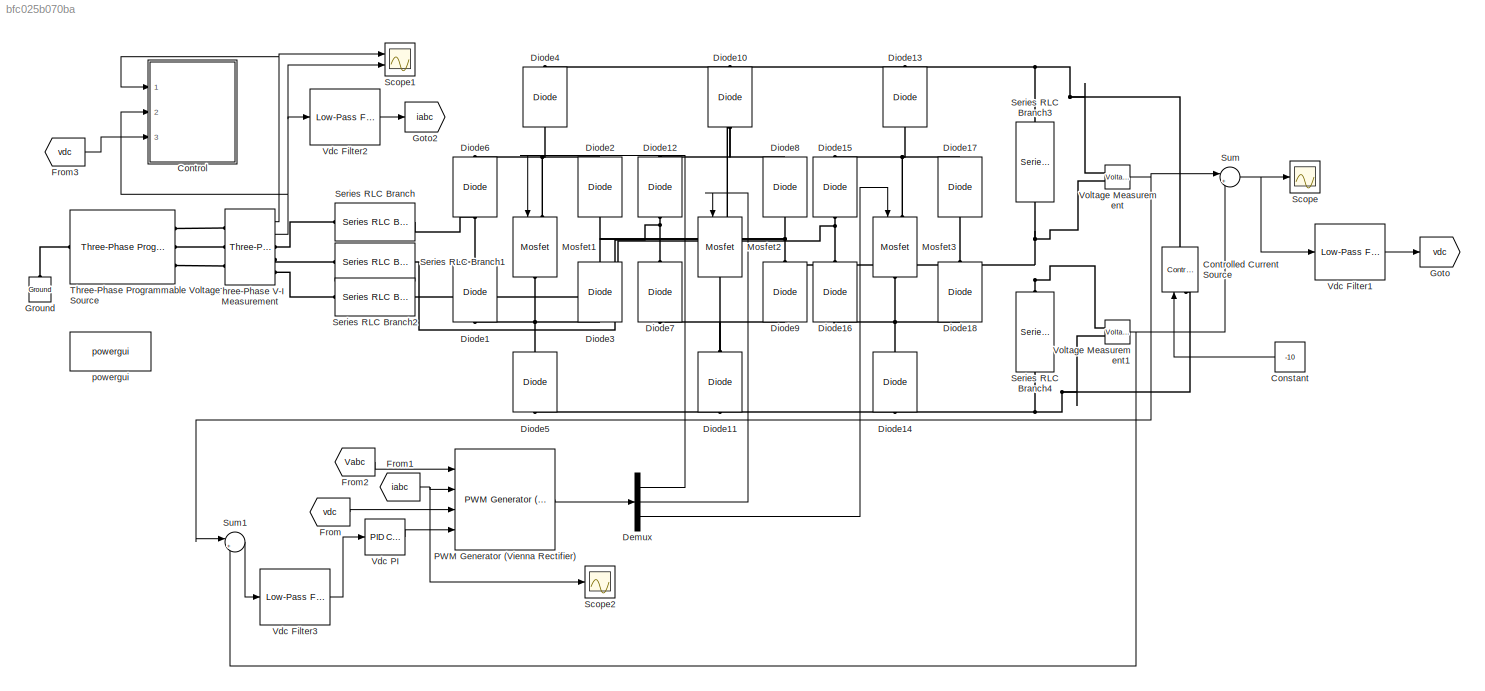
MODEL slx_bfc025b070ba
KIND model
CONFIG AbsTol = auto
CONFIG EnableMultiTasking = off
CONFIG FixedStep = auto
CONFIG MaxStep = auto
CONFIG MinStep = auto
CONFIG RelTol = 1e-3
CONFIG SampleTimeConstraint = Unconstrained
CONFIG SolverName = VariableStepAuto
CONFIG StartTime = 0.0
CONFIG StopTime = 0.2
BLOCK [Constant] Constant
  NameLocation = top
  Value = -10
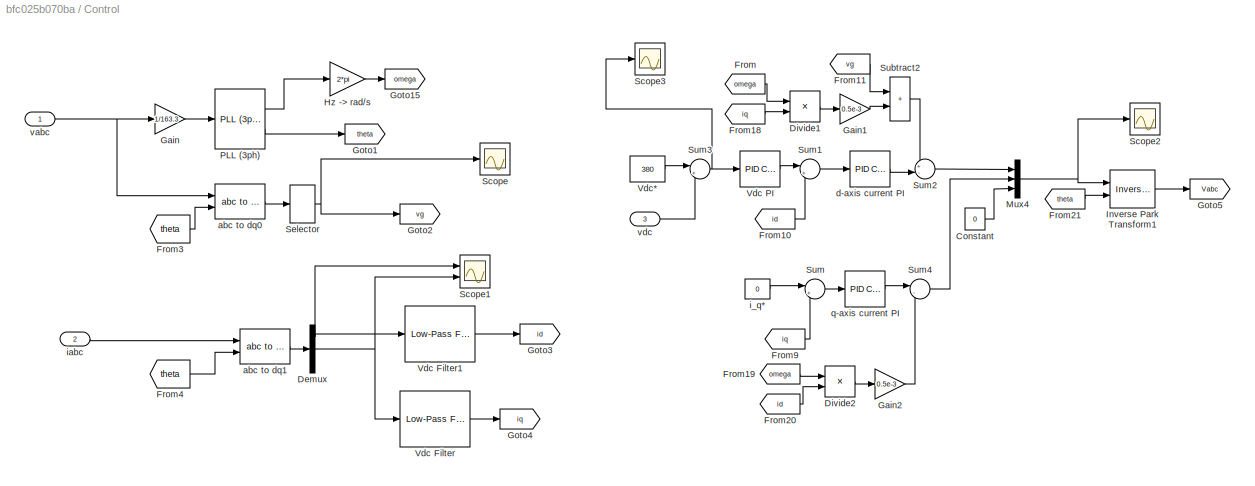
BLOCK [SubSystem] Control
  Ports = [3]
  RequestExecContextInheritance = off
BLOCK [Constant] Control/Constant
  SampleTime = -1
  Value = 0
BLOCK [Demux] Control/Demux
  Outputs = 3
  Ports = [1, 3]
BLOCK [Product] Control/Divide1
  Inputs = **
  Ports = [2, 1]
BLOCK [Product] Control/Divide2
  Inputs = **
  Ports = [2, 1]
BLOCK [From] Control/From
  GotoTag = omega
  TagVisibility = global
BLOCK [From] Control/From10
  GotoTag = id
  TagVisibility = global
BLOCK [From] Control/From11
  GotoTag = vg
  TagVisibility = global
BLOCK [From] Control/From18
  GotoTag = iq
  TagVisibility = global
BLOCK [From] Control/From19
  GotoTag = omega
  TagVisibility = global
BLOCK [From] Control/From20
  GotoTag = id
  TagVisibility = global
BLOCK [From] Control/From21
  GotoTag = theta
  TagVisibility = global
BLOCK [From] Control/From3
  GotoTag = theta
  TagVisibility = global
BLOCK [From] Control/From4
  GotoTag = theta
  TagVisibility = global
BLOCK [From] Control/From9
  GotoTag = iq
  TagVisibility = global
BLOCK [Gain] Control/Gain
  Gain = 1/163.3
BLOCK [Gain] Control/Gain1
  Gain = 0.5e-3
BLOCK [Gain] Control/Gain2
  Gain = 0.5e-3
BLOCK [Goto] Control/Goto1
  GotoTag = theta
  TagVisibility = global
BLOCK [Goto] Control/Goto15
  GotoTag = omega
  TagVisibility = global
BLOCK [Goto] Control/Goto2
  GotoTag = vg
  TagVisibility = global
BLOCK [Goto] Control/Goto3
  GotoTag = id
  TagVisibility = global
BLOCK [Goto] Control/Goto4
  GotoTag = iq
  TagVisibility = global
BLOCK [Goto] Control/Goto5
  GotoTag = Vabc
  TagVisibility = global
BLOCK [Gain] Control/Hz -> rad//s
  Gain = 2*pi
BLOCK [Reference] Control/Inverse Park Transform1  REF=eeTransforms/Inverse
Park Transform
  Ports = [2, 1]
  SourceBlock = eeTransforms/Inverse\nPark Transform
  SourceProductBaseCode = PS
  SourceType = Inverse Park Transform
BLOCK [Mux] Control/Mux4
  DisplayOption = bar
  Inputs = 3
  Ports = [3, 1]
BLOCK [Reference] Control/PLL (3ph)  REF=spsPLL3phLib/PLL
(3ph)
  Ports = [1, 2]
  SourceBlock = spsPLL3phLib/PLL\n(3ph)
  SourceProductBaseCode = PS
  SourceType = PLL (3ph)
BLOCK [Scope] Control/Scope
  Floating = off
  NumInputPorts = 1
  Ports = [1]
  ScopeSpecificationString = Simulink.scopes.TimeScopeBlockCfg('CurrentConfiguration', extmgr.ConfigurationSet(extmgr.Configuration('Core','General UI',true),extmgr.Configuration('Core','Source UI',true),extmgr.Configuration('Sources','WiredSimulink',true,'DataLoggingVariableName','ScopeData1'),extmgr.Configuration('Visuals','Time Domain',true,'SerializedDisplays',{struct('MinYLimReal','163.2992295','MaxYLimReal','163.2992367...<+1416ch>
BLOCK [Scope] Control/Scope1
  Floating = off
  NumInputPorts = 2
  Ports = [2]
  ScopeSpecificationString = Simulink.scopes.TimeScopeBlockCfg('CurrentConfiguration', extmgr.ConfigurationSet(extmgr.Configuration('Core','General UI',true),extmgr.Configuration('Core','Source UI',true),extmgr.Configuration('Sources','WiredSimulink',true,'DataLoggingVariableName','ScopeData2'),extmgr.Configuration('Visuals','Time Domain',true,'SerializedDisplays',{struct('MinYLimReal','-10.34877','MaxYLimReal','9.55482','YLa...<+1399ch>
BLOCK [Scope] Control/Scope2
  Floating = off
  NumInputPorts = 1
  Ports = [1]
  ScopeSpecificationString = Simulink.scopes.TimeScopeBlockCfg('CurrentConfiguration', extmgr.ConfigurationSet(extmgr.Configuration('Core','General UI',true),extmgr.Configuration('Core','Source UI',true),extmgr.Configuration('Sources','WiredSimulink',true,'DataLoggingVariableName','ScopeData3'),extmgr.Configuration('Visuals','Time Domain',true,'SerializedDisplays',{struct('MinYLimReal','-142.90872','MaxYLimReal','293.34906','...<+1445ch>
BLOCK [Scope] Control/Scope3
  Floating = off
  NumInputPorts = 1
  Ports = [1]
  ScopeSpecificationString = Simulink.scopes.TimeScopeBlockCfg('CurrentConfiguration', extmgr.ConfigurationSet(extmgr.Configuration('Core','General UI',true),extmgr.Configuration('Core','Source UI',true),extmgr.Configuration('Sources','WiredSimulink',true,'DataLoggingVariableName','ScopeData4'),extmgr.Configuration('Visuals','Time Domain',true,'SerializedDisplays',{struct('MinYLimReal','280.00000','MaxYLimReal','480.00000','Y...<+1429ch>
BLOCK [Selector] Control/Selector
  IndexOptions = Index vector (dialog)
  Indices = [1]
  InputPortWidth = 3
  OutputSizes = 1
  Ports = [1, 1]
BLOCK [Sum] Control/Subtract2
  IconShape = rectangular
  Ports = [2, 1]
BLOCK [Sum] Control/Sum
  Inputs = |+-
  Ports = [2, 1]
BLOCK [Sum] Control/Sum1
  Inputs = |+-
  Ports = [2, 1]
BLOCK [Sum] Control/Sum2
  Inputs = +-|
  Ports = [2, 1]
BLOCK [Sum] Control/Sum3
  Inputs = |+-
  Ports = [2, 1]
BLOCK [Sum] Control/Sum4
  Inputs = |--
  Ports = [2, 1]
BLOCK [Reference] Control/Vdc Filter  REF=eeGeneralControl/Low-Pass Filter
(Discrete or Continuous)
  Ports = [1, 1]
  SourceBlock = eeGeneralControl/Low-Pass Filter\n(Discrete or Continuous)
  SourceProductBaseCode = PS
  SourceType = Low-Pass Filter (Discrete or Continuous)
BLOCK [Reference] Control/Vdc Filter1  REF=eeGeneralControl/Low-Pass Filter
(Discrete or Continuous)
  Ports = [1, 1]
  SourceBlock = eeGeneralControl/Low-Pass Filter\n(Discrete or Continuous)
  SourceProductBaseCode = PS
  SourceType = Low-Pass Filter (Discrete or Continuous)
BLOCK [Reference] Control/Vdc PI  REF=pid_lib/PID Controller
  Ports = [1, 1]
  SourceBlock = pid_lib/PID Controller
  SourceProductBaseCode = SL
  SourceType = PID 1dof
BLOCK [Constant] Control/Vdc*
  SampleTime = -1
  Value = 380
BLOCK [Reference] Control/abc to dq0  REF=spsabctodq0Lib/abc to dq0
  Ports = [2, 1]
  SourceBlock = spsabctodq0Lib/abc to dq0
  SourceProductBaseCode = PS
  SourceType = abc to dq0 Transformation
BLOCK [Reference] Control/abc to dq1  REF=spsabctodq0Lib/abc to dq0
  Ports = [2, 1]
  SourceBlock = spsabctodq0Lib/abc to dq0
  SourceProductBaseCode = PS
  SourceType = abc to dq0 Transformation
BLOCK [Reference] Control/d-axis current PI  REF=pid_lib/PID Controller
  Ports = [1, 1]
  SourceBlock = pid_lib/PID Controller
  SourceProductBaseCode = SL
  SourceType = PID 1dof
BLOCK [Constant] Control/i_q*
  SampleTime = -1
  Value = 0
BLOCK [Inport] Control/iabc
  Port = 2
BLOCK [Reference] Control/q-axis current PI  REF=pid_lib/PID Controller
  Ports = [1, 1]
  SourceBlock = pid_lib/PID Controller
  SourceProductBaseCode = SL
  SourceType = PID 1dof
BLOCK [Inport] Control/vabc
BLOCK [Inport] Control/vdc
  Port = 3
BLOCK [Reference] Controlled Current Source  REF=spsControlledCurrentSourceLib/Controlled Current Source
  Ports = [1, 0, 0, 0, 0, 1, 1]
  SourceBlock = spsControlledCurrentSourceLib/Controlled Current Source
  SourceProductBaseCode = PS
  SourceType = Controlled Current Source
BLOCK [Demux] Demux
  Outputs = 3
  Ports = [1, 3]
BLOCK [Reference] Diode1  REF=spsDiodeLib/Diode
  NameLocation = right
  Ports = [0, 0, 0, 0, 0, 1, 1]
  SourceBlock = spsDiodeLib/Diode
  SourceProductBaseCode = PS
  SourceType = Diode
BLOCK [Reference] Diode10  REF=spsDiodeLib/Diode
  NameLocation = right
  Ports = [0, 0, 0, 0, 0, 1, 1]
  SourceBlock = spsDiodeLib/Diode
  SourceProductBaseCode = PS
  SourceType = Diode
BLOCK [Reference] Diode11  REF=spsDiodeLib/Diode
  NameLocation = right
  Ports = [0, 0, 0, 0, 0, 1, 1]
  SourceBlock = spsDiodeLib/Diode
  SourceProductBaseCode = PS
  SourceType = Diode
BLOCK [Reference] Diode12  REF=spsDiodeLib/Diode
  NameLocation = right
  Ports = [0, 0, 0, 0, 0, 1, 1]
  SourceBlock = spsDiodeLib/Diode
  SourceProductBaseCode = PS
  SourceType = Diode
BLOCK [Reference] Diode13  REF=spsDiodeLib/Diode
  NameLocation = right
  Ports = [0, 0, 0, 0, 0, 1, 1]
  SourceBlock = spsDiodeLib/Diode
  SourceProductBaseCode = PS
  SourceType = Diode
BLOCK [Reference] Diode14  REF=spsDiodeLib/Diode
  NameLocation = right
  Ports = [0, 0, 0, 0, 0, 1, 1]
  SourceBlock = spsDiodeLib/Diode
  SourceProductBaseCode = PS
  SourceType = Diode
BLOCK [Reference] Diode15  REF=spsDiodeLib/Diode
  NameLocation = right
  Ports = [0, 0, 0, 0, 0, 1, 1]
  SourceBlock = spsDiodeLib/Diode
  SourceProductBaseCode = PS
  SourceType = Diode
BLOCK [Reference] Diode16  REF=spsDiodeLib/Diode
  NameLocation = right
  Ports = [0, 0, 0, 0, 0, 1, 1]
  SourceBlock = spsDiodeLib/Diode
  SourceProductBaseCode = PS
  SourceType = Diode
BLOCK [Reference] Diode17  REF=spsDiodeLib/Diode
  NameLocation = right
  Ports = [0, 0, 0, 0, 0, 1, 1]
  SourceBlock = spsDiodeLib/Diode
  SourceProductBaseCode = PS
  SourceType = Diode
BLOCK [Reference] Diode18  REF=spsDiodeLib/Diode
  NameLocation = right
  Ports = [0, 0, 0, 0, 0, 1, 1]
  SourceBlock = spsDiodeLib/Diode
  SourceProductBaseCode = PS
  SourceType = Diode
BLOCK [Reference] Diode2  REF=spsDiodeLib/Diode
  NameLocation = right
  Ports = [0, 0, 0, 0, 0, 1, 1]
  SourceBlock = spsDiodeLib/Diode
  SourceProductBaseCode = PS
  SourceType = Diode
BLOCK [Reference] Diode3  REF=spsDiodeLib/Diode
  NameLocation = right
  Ports = [0, 0, 0, 0, 0, 1, 1]
  SourceBlock = spsDiodeLib/Diode
  SourceProductBaseCode = PS
  SourceType = Diode
BLOCK [Reference] Diode4  REF=spsDiodeLib/Diode
  NameLocation = right
  Ports = [0, 0, 0, 0, 0, 1, 1]
  SourceBlock = spsDiodeLib/Diode
  SourceProductBaseCode = PS
  SourceType = Diode
BLOCK [Reference] Diode5  REF=spsDiodeLib/Diode
  NameLocation = right
  Ports = [0, 0, 0, 0, 0, 1, 1]
  SourceBlock = spsDiodeLib/Diode
  SourceProductBaseCode = PS
  SourceType = Diode
BLOCK [Reference] Diode6  REF=spsDiodeLib/Diode
  NameLocation = right
  Ports = [0, 0, 0, 0, 0, 1, 1]
  SourceBlock = spsDiodeLib/Diode
  SourceProductBaseCode = PS
  SourceType = Diode
BLOCK [Reference] Diode7  REF=spsDiodeLib/Diode
  NameLocation = right
  Ports = [0, 0, 0, 0, 0, 1, 1]
  SourceBlock = spsDiodeLib/Diode
  SourceProductBaseCode = PS
  SourceType = Diode
BLOCK [Reference] Diode8  REF=spsDiodeLib/Diode
  NameLocation = right
  Ports = [0, 0, 0, 0, 0, 1, 1]
  SourceBlock = spsDiodeLib/Diode
  SourceProductBaseCode = PS
  SourceType = Diode
BLOCK [Reference] Diode9  REF=spsDiodeLib/Diode
  NameLocation = right
  Ports = [0, 0, 0, 0, 0, 1, 1]
  SourceBlock = spsDiodeLib/Diode
  SourceProductBaseCode = PS
  SourceType = Diode
BLOCK [From] From
  GotoTag = vdc
BLOCK [From] From1
  GotoTag = iabc
BLOCK [From] From2
  GotoTag = Vabc
  TagVisibility = global
BLOCK [From] From3
  GotoTag = vdc
BLOCK [Goto] Goto
  GotoTag = vdc
BLOCK [Goto] Goto2
  GotoTag = iabc
BLOCK [Reference] Ground  REF=spsGroundLib/Ground
  NameLocation = right
  Ports = [0, 0, 0, 0, 0, 1]
  SourceBlock = spsGroundLib/Ground
  SourceProductBaseCode = PS
  SourceType = Ground
BLOCK [Reference] Mosfet1  REF=spsMosfetLib/Mosfet
  NameLocation = left
  Ports = [1, 0, 0, 0, 0, 1, 1]
  SourceBlock = spsMosfetLib/Mosfet
  SourceProductBaseCode = PS
  SourceType = Mosfet
BLOCK [Reference] Mosfet2  REF=spsMosfetLib/Mosfet
  NameLocation = left
  Ports = [1, 0, 0, 0, 0, 1, 1]
  SourceBlock = spsMosfetLib/Mosfet
  SourceProductBaseCode = PS
  SourceType = Mosfet
BLOCK [Reference] Mosfet3  REF=spsMosfetLib/Mosfet
  NameLocation = left
  Ports = [1, 0, 0, 0, 0, 1, 1]
  SourceBlock = spsMosfetLib/Mosfet
  SourceProductBaseCode = PS
  SourceType = Mosfet
BLOCK [Reference] PWM Generator (Vienna Rectifier)  REF=eePwmGeneratorViennaRectifier/PWM Generator
(Vienna Rectifier)
  Ports = [4, 1]
  SourceBlock = eePwmGeneratorViennaRectifier/PWM Generator\n(Vienna Rectifier)
  SourceProductBaseCode = PS
  SourceType = PWM Generator (Vienna Rectifier)
BLOCK [Scope] Scope
  Floating = off
  NumInputPorts = 1
  Ports = [1]
  ScopeSpecificationString = Simulink.scopes.TimeScopeBlockCfg('CurrentConfiguration', extmgr.ConfigurationSet(extmgr.Configuration('Core','General UI',true),extmgr.Configuration('Core','Source UI',true),extmgr.Configuration('Sources','WiredSimulink',true),extmgr.Configuration('Visuals','Time Domain',true,'SerializedDisplays',{struct('MinYLimReal','-49.58633','MaxYLimReal','430.21202','YLabelReal','','MinYLimMag','0.00000','M...<+1406ch>
BLOCK [Scope] Scope1
  Floating = off
  NumInputPorts = 2
  Ports = [2]
  ScopeSpecificationString = Simulink.scopes.TimeScopeBlockCfg('CurrentConfiguration', extmgr.ConfigurationSet(extmgr.Configuration('Core','General UI',true),extmgr.Configuration('Core','Source UI',true),extmgr.Configuration('Sources','WiredSimulink',true,'DataLoggingVariableName','voltagecurrent','DataLogging',true,'DataLoggingSaveFormat','StructureWithTime'),extmgr.Configuration('Visuals','Time Domain',true,'SerializedDispl...<+1908ch>
BLOCK [Scope] Scope2
  Floating = off
  NumInputPorts = 1
  Ports = [1]
  ScopeSpecificationString = Simulink.scopes.TimeScopeBlockCfg('CurrentConfiguration', extmgr.ConfigurationSet(extmgr.Configuration('Core','General UI',true),extmgr.Configuration('Core','Source UI',true),extmgr.Configuration('Sources','WiredSimulink',true,'DataLoggingVariableName','ScopeData2'),extmgr.Configuration('Visuals','Time Domain',true,'SerializedDisplays',{struct('MinYLimReal','-17.32763','MaxYLimReal','17.35741','YL...<+1458ch>
BLOCK [Reference] Series RLC Branch  REF=spsSeriesRLCBranchLib/Series RLC Branch
  Ports = [0, 0, 0, 0, 0, 1, 1]
  SourceBlock = spsSeriesRLCBranchLib/Series RLC Branch
  SourceProductBaseCode = PS
  SourceType = Series RLC Branch
BLOCK [Reference] Series RLC Branch1  REF=spsSeriesRLCBranchLib/Series RLC Branch
  Ports = [0, 0, 0, 0, 0, 1, 1]
  SourceBlock = spsSeriesRLCBranchLib/Series RLC Branch
  SourceProductBaseCode = PS
  SourceType = Series RLC Branch
BLOCK [Reference] Series RLC Branch2  REF=spsSeriesRLCBranchLib/Series RLC Branch
  Ports = [0, 0, 0, 0, 0, 1, 1]
  SourceBlock = spsSeriesRLCBranchLib/Series RLC Branch
  SourceProductBaseCode = PS
  SourceType = Series RLC Branch
BLOCK [Reference] Series RLC Branch3  REF=spsSeriesRLCBranchLib/Series RLC Branch
  NameLocation = left
  Ports = [0, 0, 0, 0, 0, 1, 1]
  SourceBlock = spsSeriesRLCBranchLib/Series RLC Branch
  SourceProductBaseCode = PS
  SourceType = Series RLC Branch
BLOCK [Reference] Series RLC Branch4  REF=spsSeriesRLCBranchLib/Series RLC Branch
  NameLocation = left
  Ports = [0, 0, 0, 0, 0, 1, 1]
  SourceBlock = spsSeriesRLCBranchLib/Series RLC Branch
  SourceProductBaseCode = PS
  SourceType = Series RLC Branch
BLOCK [Sum] Sum
  Inputs = |++
  Ports = [2, 1]
BLOCK [Sum] Sum1
  Inputs = |+-
  Ports = [2, 1]
BLOCK [Reference] Three-Phase Programmable Voltage Source  REF=spsThreePhaseProgrammableVoltageSourceLib/Three-Phase
Programmable
Voltage Source
  Ports = [0, 0, 0, 0, 0, 1, 3]
  SourceBlock = spsThreePhaseProgrammableVoltageSourceLib/Three-Phase\nProgrammable\nVoltage Source
  SourceProductBaseCode = PS
  SourceType = Three-Phase Programmable Voltage Source
BLOCK [Reference] Three-Phase V-I Measurement  REF=spsThreePhaseVIMeasurementLib/Three-Phase
V-I Measurement
  Ports = [0, 2, 0, 0, 0, 3, 3]
  SourceBlock = spsThreePhaseVIMeasurementLib/Three-Phase\nV-I Measurement
  SourceProductBaseCode = PS
  SourceType = Three-Phase VI Measurement
BLOCK [Reference] Vdc Filter1  REF=eeGeneralControl/Low-Pass Filter
(Discrete or Continuous)
  Ports = [1, 1]
  SourceBlock = eeGeneralControl/Low-Pass Filter\n(Discrete or Continuous)
  SourceProductBaseCode = PS
  SourceType = Low-Pass Filter (Discrete or Continuous)
BLOCK [Reference] Vdc Filter2  REF=eeGeneralControl/Low-Pass Filter
(Discrete or Continuous)
  Ports = [1, 1]
  SourceBlock = eeGeneralControl/Low-Pass Filter\n(Discrete or Continuous)
  SourceProductBaseCode = PS
  SourceType = Low-Pass Filter (Discrete or Continuous)
BLOCK [Reference] Vdc Filter3  REF=eeGeneralControl/Low-Pass Filter
(Discrete or Continuous)
  Ports = [1, 1]
  SourceBlock = eeGeneralControl/Low-Pass Filter\n(Discrete or Continuous)
  SourceProductBaseCode = PS
  SourceType = Low-Pass Filter (Discrete or Continuous)
BLOCK [Reference] Vdc PI  REF=pid_lib/PID Controller
  Ports = [1, 1]
  SourceBlock = pid_lib/PID Controller
  SourceProductBaseCode = SL
  SourceType = PID 1dof
BLOCK [Reference] Voltage Measurement  REF=spsVoltageMeasurementLib/Voltage Measurement
  Ports = [0, 1, 0, 0, 0, 2]
  SourceBlock = spsVoltageMeasurementLib/Voltage Measurement
  SourceProductBaseCode = PS
  SourceType = Voltage Measurement
  UserDataPersistent = on
BLOCK [Reference] Voltage Measurement1  REF=spsVoltageMeasurementLib/Voltage Measurement
  Ports = [0, 1, 0, 0, 0, 2]
  SourceBlock = spsVoltageMeasurementLib/Voltage Measurement
  SourceProductBaseCode = PS
  SourceType = Voltage Measurement
  UserDataPersistent = on
BLOCK [Reference] powergui  REF=spspowerguiLib/powergui
  Ports = []
  Priority = 1
  SourceBlock = spspowerguiLib/powergui
  SourceProductBaseCode = PS
  SourceType = PSB option menu block
LINE Constant:1 -> Controlled Current Source:1
LINE Control/Constant:1 -> Control/Mux4:3
NET Control/Demux:1 -> Control/Scope1:1, Control/Vdc Filter1:1
NET Control/Demux:2 -> Control/Scope1:2, Control/Vdc Filter:1
LINE Control/Divide1:1 -> Control/Gain1:1
LINE Control/Divide2:1 -> Control/Gain2:1
LINE Control/From10:1 -> Control/Sum1:2
LINE Control/From11:1 -> Control/Subtract2:1
LINE Control/From18:1 -> Control/Divide1:2
LINE Control/From19:1 -> Control/Divide2:1
LINE Control/From20:1 -> Control/Divide2:2
LINE Control/From21:1 -> Control/Inverse Park Transform1:2
LINE Control/From3:1 -> Control/abc to dq0:2
LINE Control/From4:1 -> Control/abc to dq1:2
LINE Control/From9:1 -> Control/Sum:2
LINE Control/From:1 -> Control/Divide1:1
LINE Control/Gain1:1 -> Control/Subtract2:2
LINE Control/Gain2:1 -> Control/Sum4:2
LINE Control/Gain:1 -> Control/PLL (3ph):1
LINE Control/Hz -> rad//s:1 -> Control/Goto15:1
LINE Control/Inverse Park Transform1:1 -> Control/Goto5:1
NET Control/Mux4:1 -> Control/Inverse Park Transform1:1, Control/Scope2:1
LINE Control/PLL (3ph):1 -> Control/Hz -> rad//s:1
LINE Control/PLL (3ph):2 -> Control/Goto1:1
NET Control/Selector:1 -> Control/Goto2:1, Control/Scope:1
LINE Control/Subtract2:1 -> Control/Sum2:1
LINE Control/Sum1:1 -> Control/d-axis current PI:1
LINE Control/Sum2:1 -> Control/Mux4:1
NET Control/Sum3:1 -> Control/Scope3:1, Control/Vdc PI:1
LINE Control/Sum4:1 -> Control/Mux4:2
LINE Control/Sum:1 -> Control/q-axis current PI:1
LINE Control/Vdc Filter1:1 -> Control/Goto3:1
LINE Control/Vdc Filter:1 -> Control/Goto4:1
LINE Control/Vdc PI:1 -> Control/Sum1:1
LINE Control/Vdc*:1 -> Control/Sum3:1
LINE Control/abc to dq0:1 -> Control/Selector:1
LINE Control/abc to dq1:1 -> Control/Demux:1
LINE Control/d-axis current PI:1 -> Control/Sum2:2
LINE Control/i_q*:1 -> Control/Sum:1
LINE Control/iabc:1 -> Control/abc to dq1:1
LINE Control/q-axis current PI:1 -> Control/Sum4:1
NET Control/vabc:1 -> Control/Gain:1, Control/abc to dq0:1
LINE Control/vdc:1 -> Control/Sum3:2
LINE Demux:1 -> Mosfet1:1
LINE Demux:2 -> Mosfet2:1
LINE Demux:3 -> Mosfet3:1
NET From1:1 -> PWM Generator (Vienna Rectifier):2, Scope2:1
LINE From2:1 -> PWM Generator (Vienna Rectifier):1
LINE From3:1 -> Control:3
LINE From:1 -> PWM Generator (Vienna Rectifier):3
LINE PWM Generator (Vienna Rectifier):1 -> Demux:1
LINE Sum1:1 -> Vdc Filter3:1
NET Sum:1 -> Scope:1, Vdc Filter1:1
NET Three-Phase V-I Measurement:1 -> Control:1, Scope1:1
NET Three-Phase V-I Measurement:2 -> Control:2, Scope1:2, Vdc Filter2:1
LINE Vdc Filter1:1 -> Goto:1
LINE Vdc Filter2:1 -> Goto2:1
LINE Vdc Filter3:1 -> Vdc PI:1
LINE Vdc PI:1 -> PWM Generator (Vienna Rectifier):4
NET Voltage Measurement1:1 -> Sum1:2, Sum:2
NET Voltage Measurement:1 -> Sum1:1, Sum:1
PNET net1: Controlled Current Source:LConn1 -- Diode11:LConn1 -- Diode14:LConn1 -- Diode5:LConn1 -- Series RLC Branch4:RConn1 -- Voltage Measurement1:LConn2
PNET net2: Controlled Current Source:RConn1 -- Diode10:RConn1 -- Diode13:RConn1 -- Diode4:RConn1 -- Series RLC Branch3:LConn1 -- Voltage Measurement:LConn1
PNET net3: Diode10:LConn1 -- Diode12:RConn1 -- Diode8:RConn1 -- Mosfet2:LConn1
PNET net4: Diode11:RConn1 -- Diode7:LConn1 -- Diode9:LConn1 -- Mosfet2:RConn1
PNET net5: Diode12:LConn1 -- Diode7:RConn1 -- Series RLC Branch1:RConn1
PNET net6: Diode13:LConn1 -- Diode15:RConn1 -- Diode17:RConn1 -- Mosfet3:LConn1
PNET net7: Diode14:RConn1 -- Diode16:LConn1 -- Diode18:LConn1 -- Mosfet3:RConn1
PNET net8: Diode15:LConn1 -- Diode16:RConn1 -- Series RLC Branch2:RConn1
PNET net9: Diode17:LConn1 -- Diode18:RConn1 -- Diode2:LConn1 -- Diode3:RConn1 -- Diode8:LConn1 -- Diode9:RConn1 -- Series RLC Branch3:RConn1 -- Series RLC Branch4:LConn1 -- Voltage Measurement1:LConn1 -- Voltage Measurement:LConn2
PNET net10: Diode1:LConn1 -- Diode3:LConn1 -- Diode5:RConn1 -- Mosfet1:RConn1
PNET net11: Diode1:RConn1 -- Diode6:LConn1 -- Series RLC Branch:RConn1
PNET net12: Diode2:RConn1 -- Diode4:LConn1 -- Diode6:RConn1 -- Mosfet1:LConn1
PLINE Ground:LConn1 -- Three-Phase Programmable Voltage Source:LConn1
PLINE Series RLC Branch1:LConn1 -- Three-Phase V-I Measurement:RConn2
PLINE Series RLC Branch2:LConn1 -- Three-Phase V-I Measurement:RConn3
PLINE Series RLC Branch:LConn1 -- Three-Phase V-I Measurement:RConn1
PLINE Three-Phase Programmable Voltage Source:RConn1 -- Three-Phase V-I Measurement:LConn1
PLINE Three-Phase Programmable Voltage Source:RConn2 -- Three-Phase V-I Measurement:LConn2
PLINE Three-Phase Programmable Voltage Source:RConn3 -- Three-Phase V-I Measurement:LConn3
note: NET lines group one-source signal fan-out (src -> all destinations, sorted); 1:1 wires keep LINE; PNET lines group multi-terminal physical nets as a canonical sorted terminal list (undirected conserving connections); 2-terminal nets keep the pairwise PLINE form
